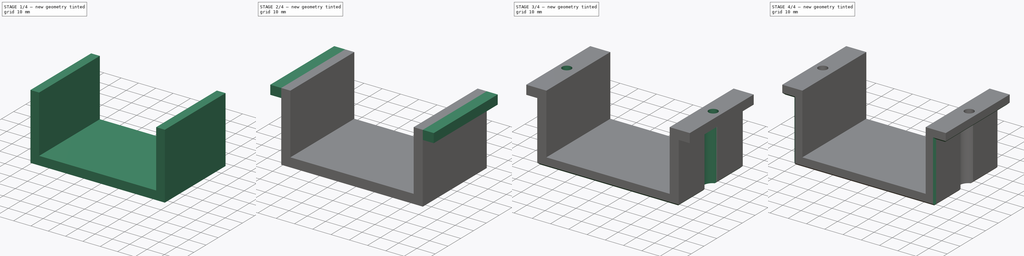
[diagram: build sequence overview — one tinted view per stage of 4, left to right]
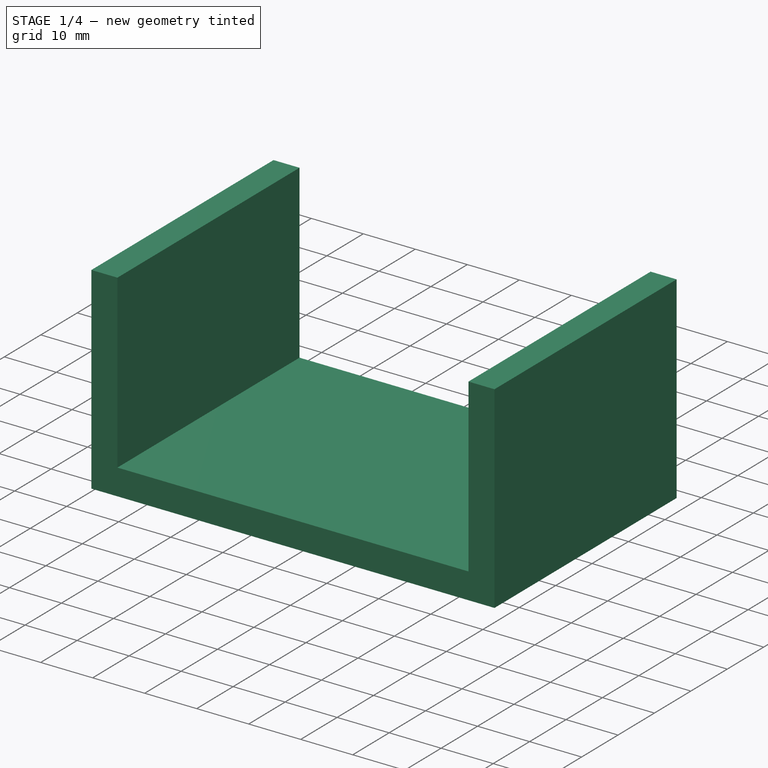
[diagram: stage 1 of 4 — iso view after this stage's code; geometry added in this stage tinted green]
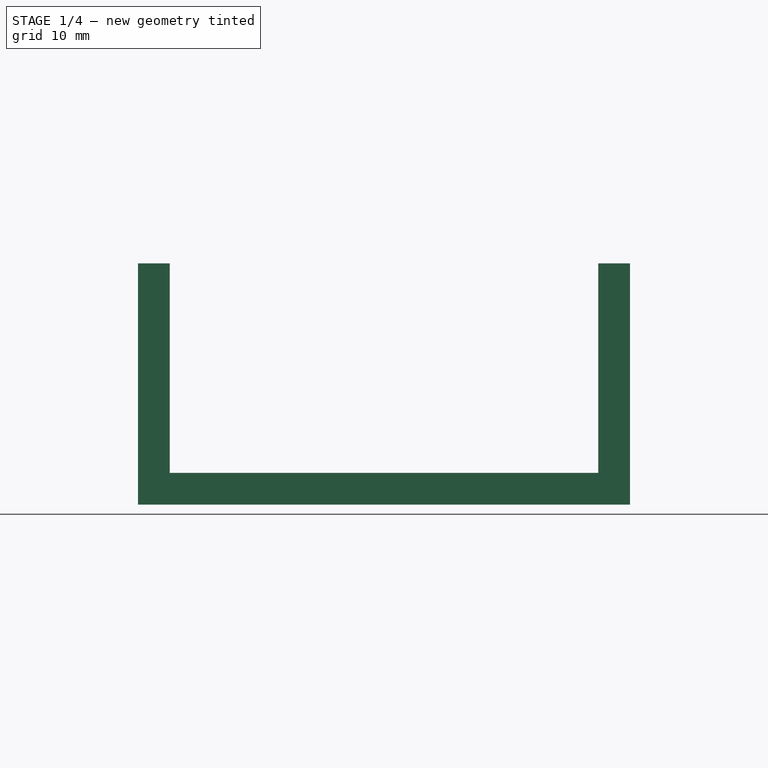
[diagram: stage 1 of 4 — front view after this stage's code; geometry added in this stage tinted green]
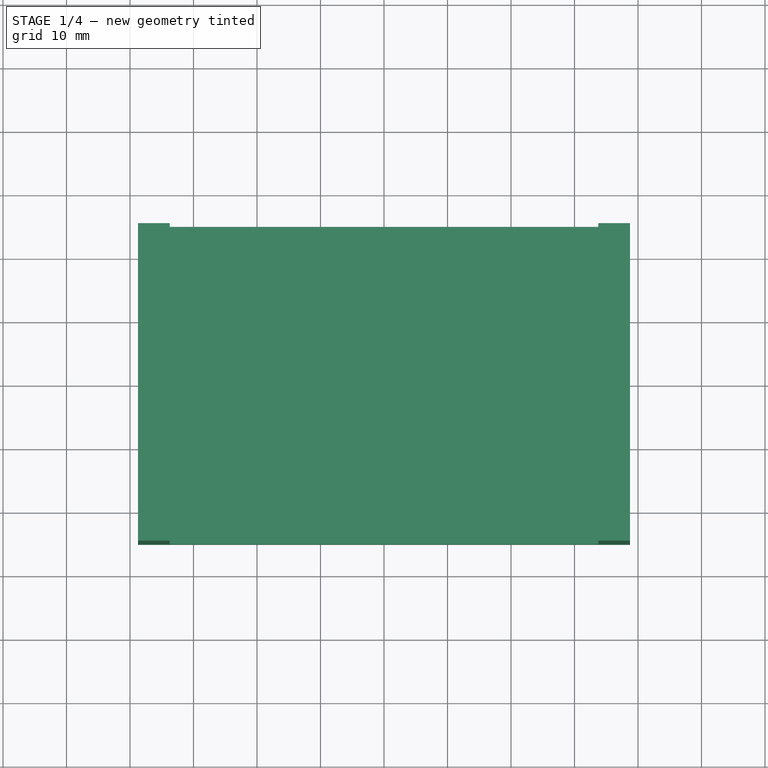
[diagram: stage 1 of 4 — top view after this stage's code; geometry added in this stage tinted green]
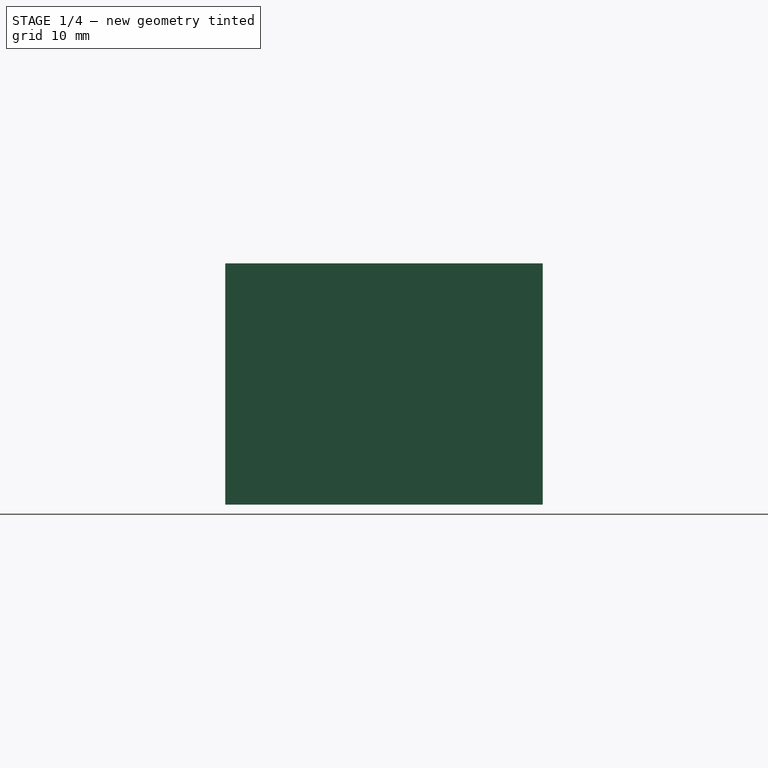
[diagram: stage 1 of 4 — right view after this stage's code; geometry added in this stage tinted green]
FCSTD DOCUMENT  (FreeCAD 0.19R23463 (Git))
Label: power-block-clamp
License: All rights reserved
LicenseURL: http://en.wikipedia.org/wiki/All_rights_reserved
objects: Sketcher::SketchObject×6, PartDesign::Pad×4, PartDesign::Chamfer×3, PartDesign::Pocket×2, PartDesign::Body×1
note: 25 computed .brp shape members not serialized (recipe doc carries the construction recipe); baked Part::Feature solids carry a one-line shape summary decoded from their .brp

FEATURE [Sketcher::SketchObject] Sketch
  MapMode = 5
  Support = -> [XY_Plane]
  sketch-geometry (4):
    g0: LineSegment StartX=-38.75 StartY=25 StartZ=0 EndX=38.75 EndY=25 EndZ=0
    g1: LineSegment StartX=38.75 StartY=25 StartZ=0 EndX=38.75 EndY=-25 EndZ=0
    g2: LineSegment StartX=38.75 StartY=-25 StartZ=0 EndX=-38.75 EndY=-25 EndZ=0
    g3: LineSegment StartX=-38.75 StartY=-25 StartZ=0 EndX=-38.75 EndY=25 EndZ=0
  constraints (11):
    c: Coincident(g0,g1)
    c: Coincident(g1,g2)
    c: Coincident(g2,g3)
    c: Coincident(g3,g0)
    c: Horizontal(g0)
    c: Horizontal(g2)
    c: Vertical(g1)
    c: Vertical(g3)
    c: Symmetric(g0,g1,g-1)
    c: DistanceY(g3,g3) = 50
    c: DistanceX(g0,g0) = 77.5
FEATURE [PartDesign::Pad] Pad
  Direction = (1,1,1)
  Length = 5
  Length2 = 100
  Profile = -> Sketch
  Type = 0
FEATURE [Sketcher::SketchObject] Sketch001
  ExternalGeometry = -> [Pad]
  MapMode = 5
  Placement = pos=(0,0,5) rot=(0,0,1;0rad)
  Support = -> [Pad]
  sketch-geometry (8):
    g0: LineSegment StartX=-38.75 StartY=25 StartZ=0 EndX=-33.75 EndY=25 EndZ=0
    g1: LineSegment StartX=-33.75 StartY=25 StartZ=0 EndX=-33.75 EndY=-25 EndZ=0
    g2: LineSegment StartX=-33.75 StartY=-25 StartZ=0 EndX=-38.75 EndY=-25 EndZ=0
    g3: LineSegment StartX=-38.75 StartY=-25 StartZ=0 EndX=-38.75 EndY=25 EndZ=0
    g4: LineSegment StartX=38.75 StartY=25 StartZ=0 EndX=33.75 EndY=25 EndZ=0
    g5: LineSegment StartX=33.75 StartY=25 StartZ=0 EndX=33.75 EndY=-25 EndZ=0
    g6: LineSegment StartX=33.75 StartY=-25 StartZ=0 EndX=38.75 EndY=-25 EndZ=0
    g7: LineSegment StartX=38.75 StartY=-25 StartZ=0 EndX=38.75 EndY=25 EndZ=0
  constraints (22):
    c: Coincident(g0,g1)
    c: Coincident(g1,g2)
    c: Coincident(g2,g3)
    c: Coincident(g3,g0)
    c: Horizontal(g0)
    c: Horizontal(g2)
    c: Vertical(g1)
    c: Vertical(g3)
    c: Coincident(g0,g-4)
    c: PointOnObject(g1,g-5)
    c: DistanceX(g2,g2) = 5
    c: Coincident(g4,g5)
    c: Coincident(g5,g6)
    c: Coincident(g6,g7)
    c: Coincident(g7,g4)
    c: Horizontal(g4)
    c: Horizontal(g6)
    c: Vertical(g5)
    c: Vertical(g7)
    c: Coincident(g4,g-6)
    c: PointOnObject(g5,g-5)
    c: Equal(g6,g2)
FEATURE [PartDesign::Pad] Pad001
  BaseFeature = -> Pad
  Direction = (1,1,1)
  Length = 33
  Length2 = 100
  Profile = -> Sketch001
  Type = 0
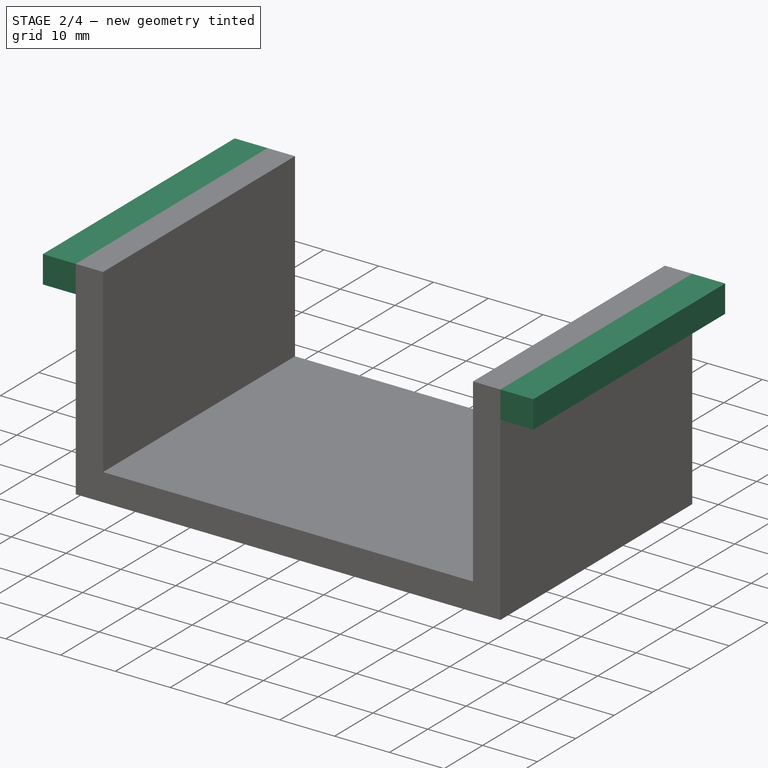
[diagram: stage 2 of 4 — iso view after this stage's code; geometry added in this stage tinted green]
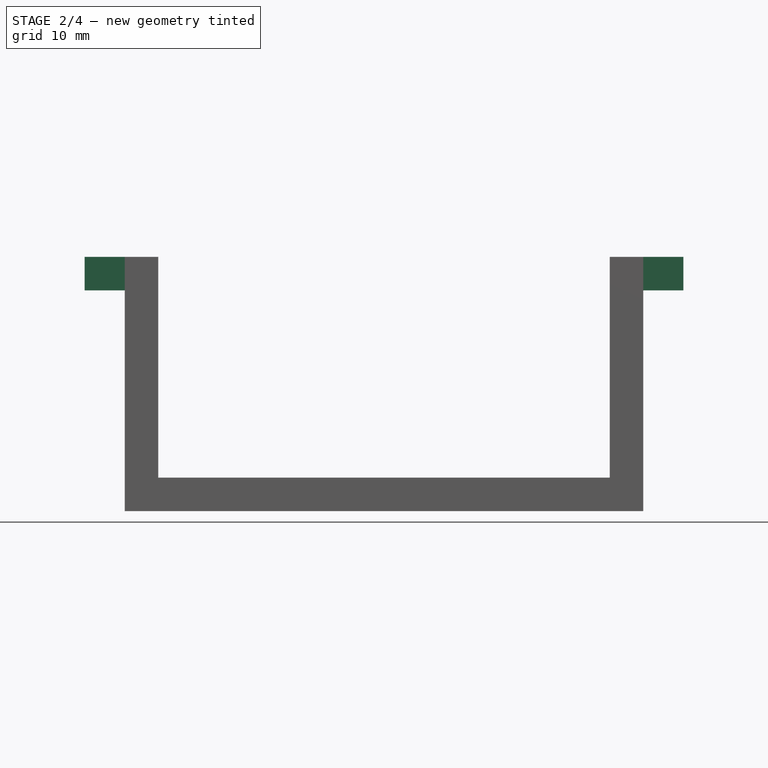
[diagram: stage 2 of 4 — front view after this stage's code; geometry added in this stage tinted green]
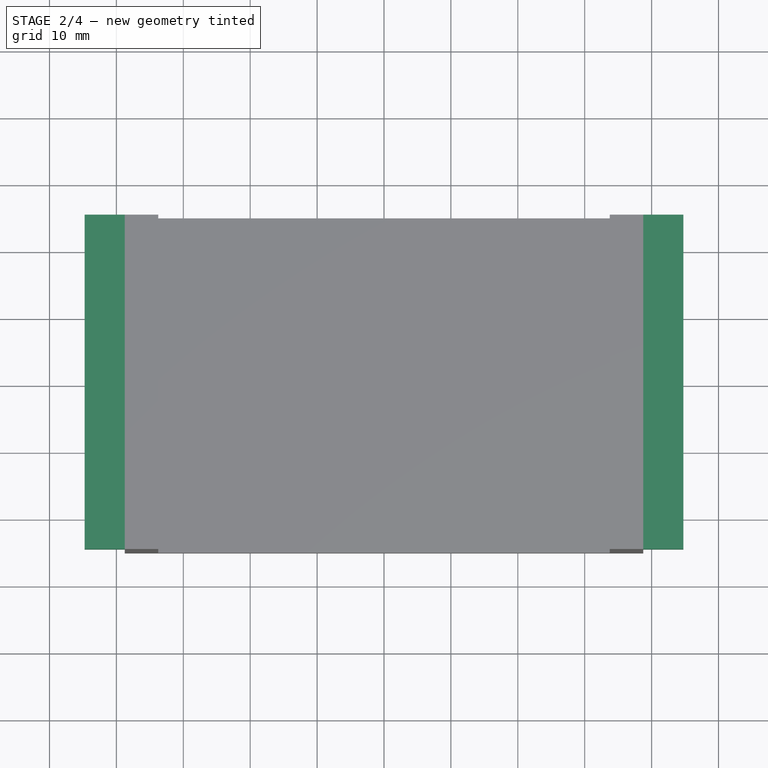
[diagram: stage 2 of 4 — top view after this stage's code; geometry added in this stage tinted green]
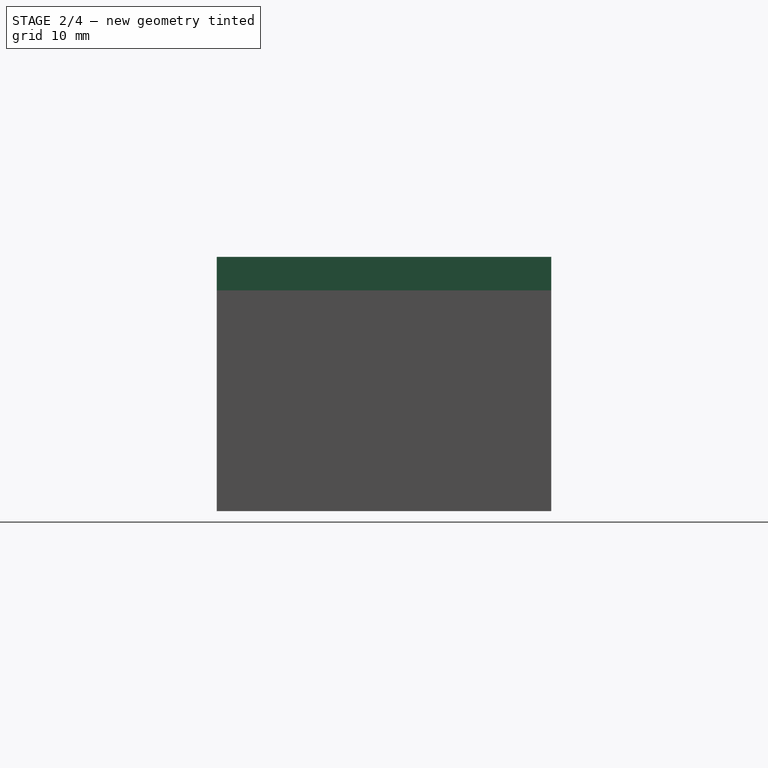
[diagram: stage 2 of 4 — right view after this stage's code; geometry added in this stage tinted green]
FEATURE [Sketcher::SketchObject] Sketch002
  ExternalGeometry = -> [Pad001]
  MapMode = 5
  Placement = pos=(38.75,0,0) rot=(0.57735,0.57735,0.57735;2.0944rad)
  Support = -> [Pad001]
  sketch-geometry (4):
    g0: LineSegment StartX=-25 StartY=38 StartZ=0 EndX=25 EndY=38 EndZ=0
    g1: LineSegment StartX=25 StartY=38 StartZ=0 EndX=25 EndY=33 EndZ=0
    g2: LineSegment StartX=25 StartY=33 StartZ=0 EndX=-25 EndY=33 EndZ=0
    g3: LineSegment StartX=-25 StartY=33 StartZ=0 EndX=-25 EndY=38 EndZ=0
  constraints (11):
    c: Coincident(g0,g1)
    c: Coincident(g1,g2)
    c: Coincident(g2,g3)
    c: Coincident(g3,g0)
    c: Horizontal(g0)
    c: Horizontal(g2)
    c: Vertical(g1)
    c: Vertical(g3)
    c: Coincident(g0,g-4)
    c: PointOnObject(g1,g-5)
    c: DistanceY(g3,g3) = 5
FEATURE [PartDesign::Pad] Pad002
  BaseFeature = -> Pad001
  Direction = (1,1,1)
  Length = 6
  Length2 = 100
  Profile = -> Sketch002
  Type = 0
FEATURE [Sketcher::SketchObject] Sketch003
  ExternalGeometry = -> [Pad002]
  MapMode = 5
  Placement = pos=(-38.75,0,0) rot=(0.57735,-0.57735,-0.57735;2.0944rad)
  Support = -> [Pad002]
  sketch-geometry (4):
    g0: LineSegment StartX=-25 StartY=38 StartZ=0 EndX=25 EndY=38 EndZ=0
    g1: LineSegment StartX=25 StartY=38 StartZ=0 EndX=25 EndY=33 EndZ=0
    g2: LineSegment StartX=25 StartY=33 StartZ=0 EndX=-25 EndY=33 EndZ=0
    g3: LineSegment StartX=-25 StartY=33 StartZ=0 EndX=-25 EndY=38 EndZ=0
  constraints (11):
    c: Coincident(g0,g1)
    c: Coincident(g1,g2)
    c: Coincident(g2,g3)
    c: Coincident(g3,g0)
    c: Horizontal(g0)
    c: Horizontal(g2)
    c: Vertical(g1)
    c: Vertical(g3)
    c: Coincident(g0,g-5)
    c: PointOnObject(g1,g-4)
    c: DistanceY(g1,g1) = 5
FEATURE [PartDesign::Pad] Pad003
  BaseFeature = -> Pad002
  Direction = (1,1,1)
  Length = 6
  Length2 = 100
  Profile = -> Sketch003
  Type = 0
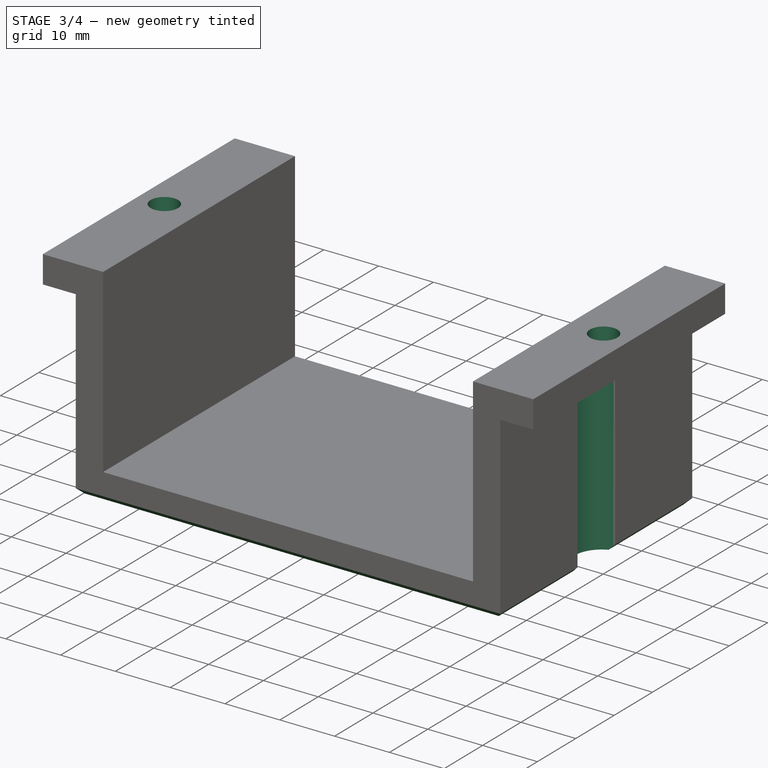
[diagram: stage 3 of 4 — iso view after this stage's code; geometry added in this stage tinted green]
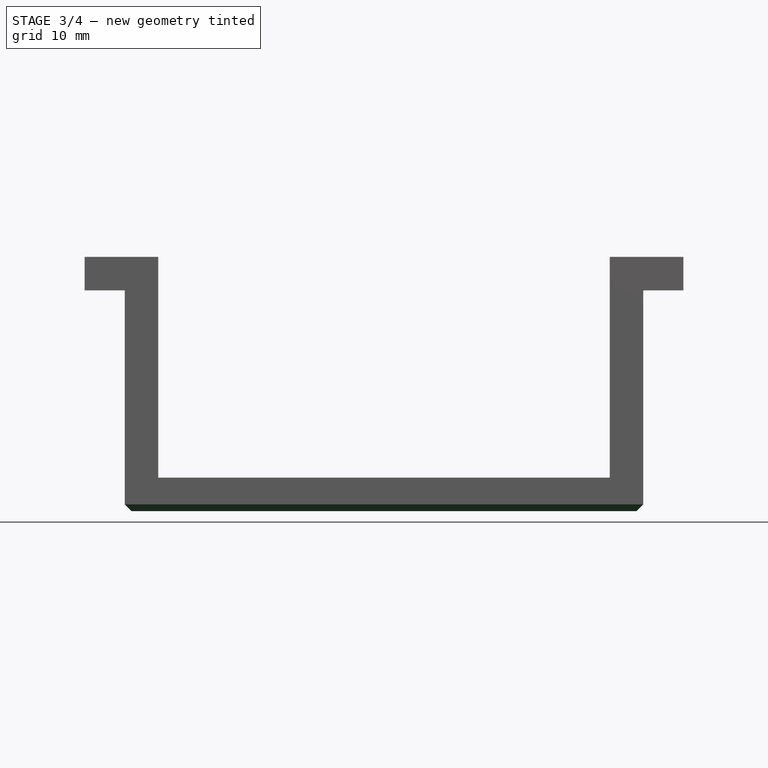
[diagram: stage 3 of 4 — front view after this stage's code; geometry added in this stage tinted green]
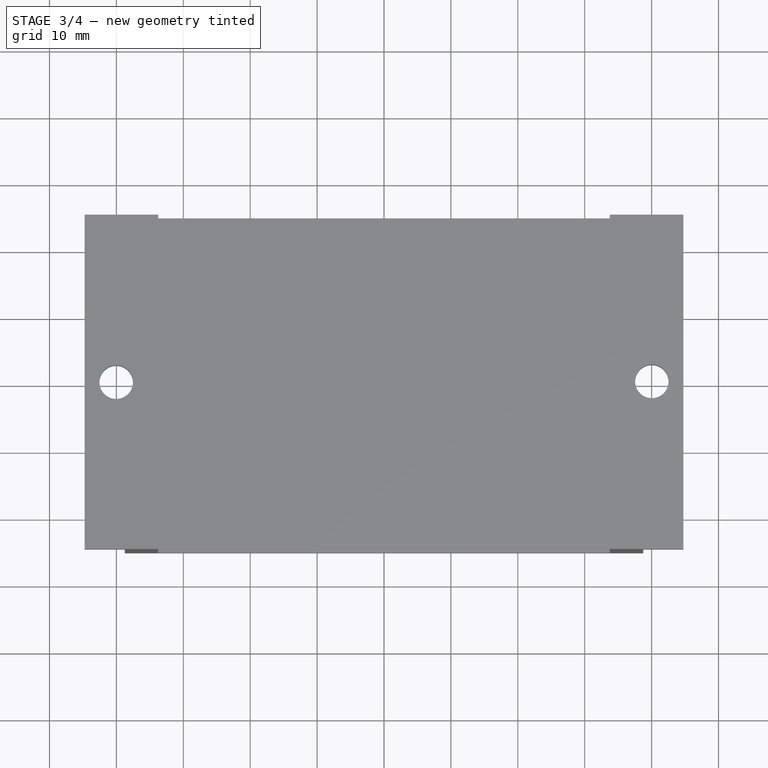
[diagram: stage 3 of 4 — top view after this stage's code; geometry added in this stage tinted green]
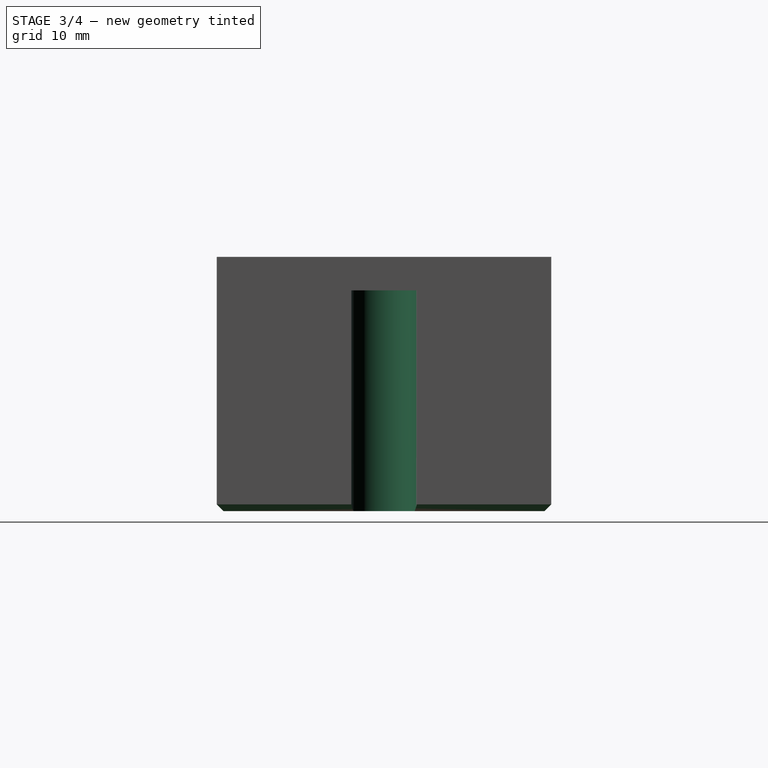
[diagram: stage 3 of 4 — right view after this stage's code; geometry added in this stage tinted green]
FEATURE [Sketcher::SketchObject] Sketch004
  ExternalGeometry = -> [Pad003]
  MapMode = 5
  Placement = pos=(0,0,33) rot=(1,0,0;3.14159rad)
  Support = -> [Pad003]
  sketch-geometry (6):
    g0: LineSegment StartX=-44.75 StartY=0 StartZ=0 EndX=-38.8007 EndY=0 EndZ=0
    g1: LineSegment StartX=38.729 StartY=0 StartZ=0 EndX=44.75 EndY=0 EndZ=0
    g2: Circle CenterX=40.0361 CenterY=-0.0590486 CenterZ=0 NormalX=0 NormalY=0 NormalZ=1 AngleXU=0 Radius=2.5
    g3: Circle CenterX=-40.0361 CenterY=0.0590486 CenterZ=0 NormalX=0 NormalY=0 NormalZ=1 AngleXU=0 Radius=2.5
    g4: LineSegment StartX=-35.3221 StartY=25 StartZ=0 EndX=-35.3221 EndY=-24.8819 EndZ=0
    g5: LineSegment StartX=35.3221 StartY=24.8819 StartZ=0 EndX=34.75 EndY=-25 EndZ=0
  constraints (13):
    c: PointOnObject(g0,g-6)
    c: PointOnObject(g0,g-1)
    c: Horizontal(g0)
    c: PointOnObject(g1,g-1)
    c: PointOnObject(g1,g-3)
    c: Horizontal(g1)
    c: Radius(g2) = 2.5
    c: Radius(g3) = 2.5
    c: PointOnObject(g4,g-10)
    c: Vertical(g4)
    c: Symmetric(g-8,g4,g3)
    c: PointOnObject(g5,g-9)
    c: Symmetric(g5,g-5,g2)
FEATURE [PartDesign::Pocket] Pocket
  BaseFeature = -> Pad003
  Length = 5
  Length2 = 100
  Profile = -> Sketch004
  Type = 1
FEATURE [Sketcher::SketchObject] Sketch005
  ExternalGeometry = -> [Pocket]
  MapMode = 5
  Placement = pos=(0,0,0) rot=(1,0,0;3.14159rad)
  Support = -> [Pocket]
  sketch-geometry (4):
    g0: LineSegment StartX=34.75 StartY=25 StartZ=0 EndX=34.75 EndY=-25 EndZ=0
    g1: Circle CenterX=39.75 CenterY=2.5e-15 CenterZ=0 NormalX=0 NormalY=0 NormalZ=1 AngleXU=0 Radius=5
    g2: Circle CenterX=-39.75 CenterY=-6e-16 CenterZ=0 NormalX=0 NormalY=0 NormalZ=1 AngleXU=0 Radius=5
    g3: LineSegment StartX=-34.75 StartY=25 StartZ=0 EndX=-34.75 EndY=-25 EndZ=0
  constraints (12):
    c: PointOnObject(g0,g-3)
    c: PointOnObject(g0,g-6)
    c: Vertical(g0)
    c: Radius(g1) = 5
    c: Radius(g2) = 5
    c: PointOnObject(g3,g-3)
    c: PointOnObject(g3,g-6)
    c: Vertical(g3)
    c: DistanceX(g0,g-8) = 10
    c: DistanceX(g-7,g3) = 10
    c: Symmetric(g-7,g3,g2)
    c: Symmetric(g0,g-8,g1)
FEATURE [PartDesign::Pocket] Pocket001
  BaseFeature = -> Pocket
  Length = 33
  Length2 = 100
  Profile = -> Sketch005
  Type = 0
FEATURE [PartDesign::Chamfer] Chamfer
  Angle = 45
  Base = -> Pocket001 [Edge3,Edge16,Edge7,Edge15,Edge17,Edge10]
  BaseFeature = -> Pocket001
  ChamferType = 0
  FlipDirection = false
  Size = 1
  Size2 = 1
  SupportTransform = false
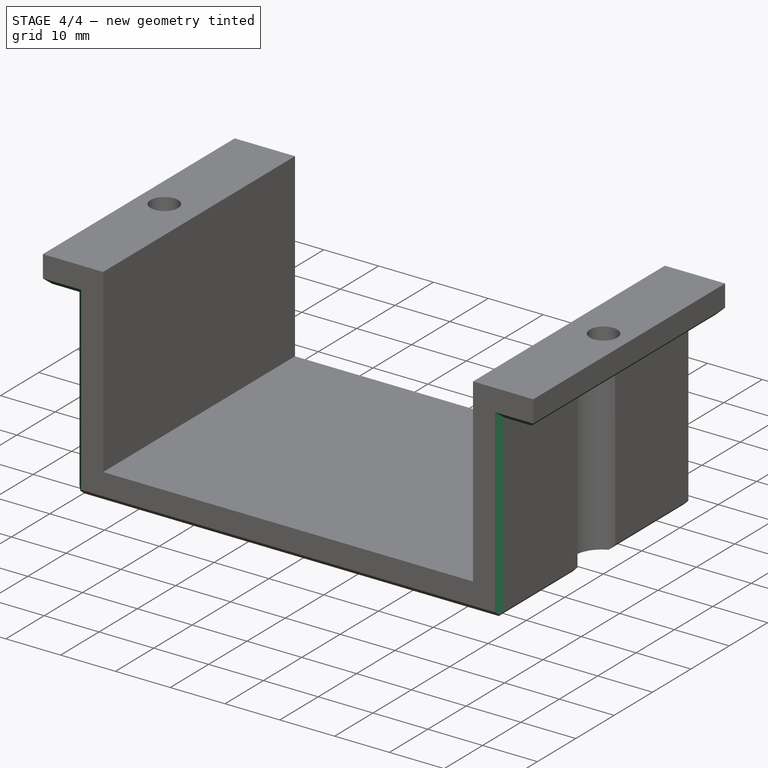
[diagram: stage 4 of 4 — iso view after this stage's code; geometry added in this stage tinted green]
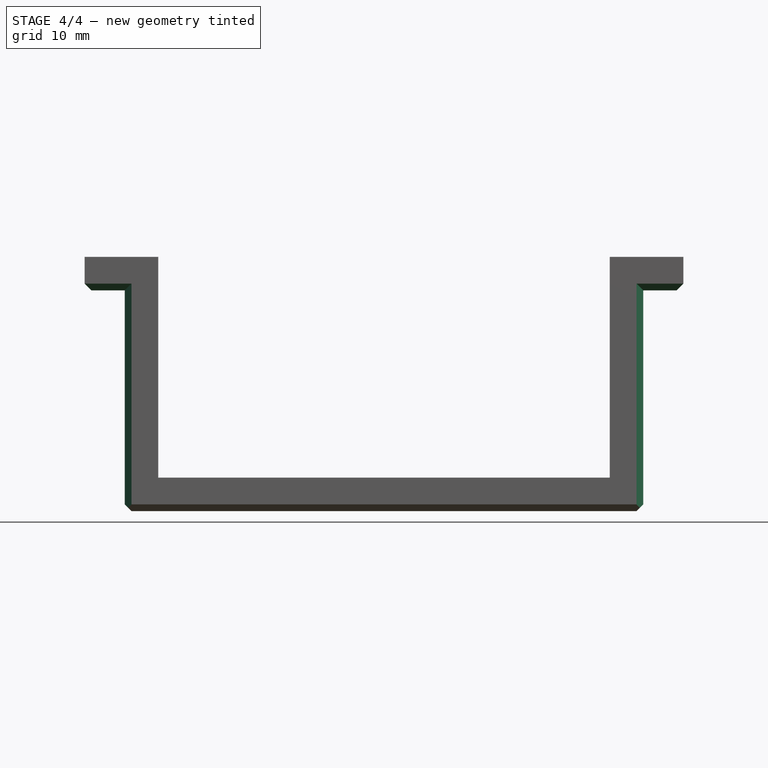
[diagram: stage 4 of 4 — front view after this stage's code; geometry added in this stage tinted green]
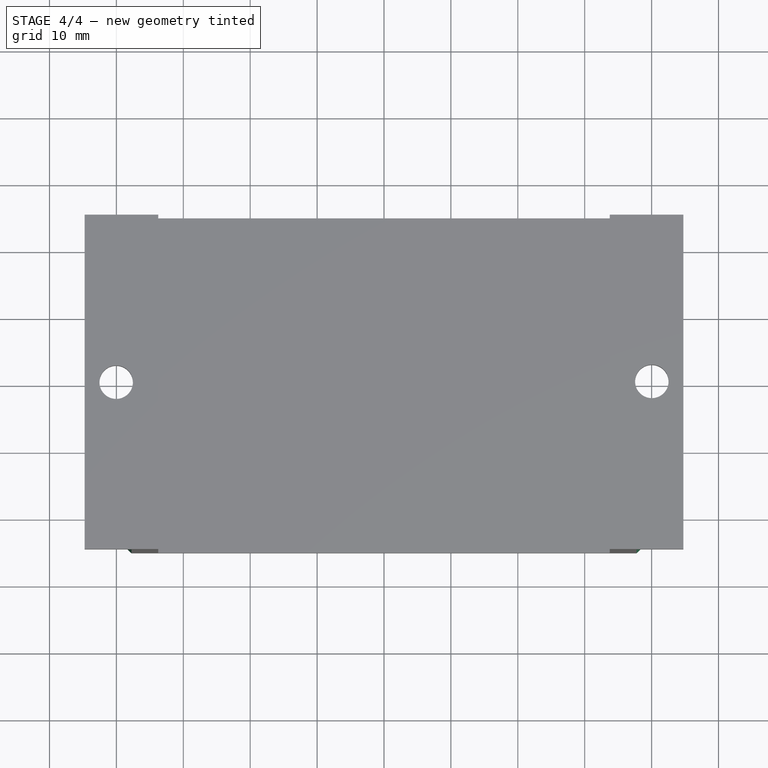
[diagram: stage 4 of 4 — top view after this stage's code; geometry added in this stage tinted green]
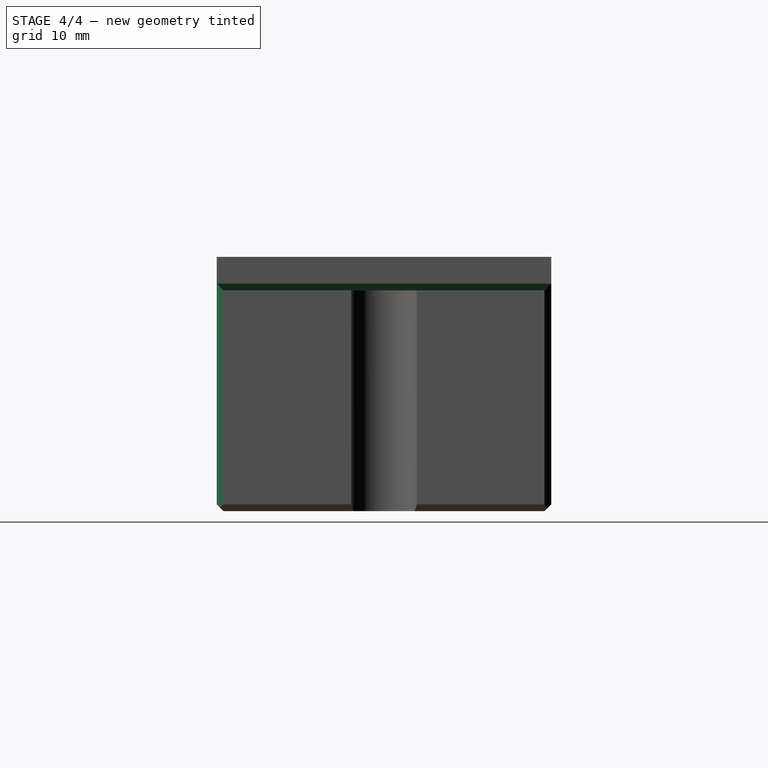
[diagram: stage 4 of 4 — right view after this stage's code; geometry added in this stage tinted green]
FEATURE [PartDesign::Chamfer] Chamfer001
  Angle = 45
  Base = -> Chamfer [Edge72,Edge89,Edge108,Edge101,Edge115,Edge41,Edge65,Edge117]
  BaseFeature = -> Chamfer
  ChamferType = 0
  FlipDirection = false
  Size = 1
  Size2 = 1
  SupportTransform = false
FEATURE [PartDesign::Chamfer] Chamfer002
  Angle = 45
  Base = -> Chamfer001 [Edge4,Edge86,Edge95,Edge105]
  BaseFeature = -> Chamfer001
  ChamferType = 0
  FlipDirection = false
  Size = 1
  Size2 = 1
  SupportTransform = false
FEATURE [PartDesign::Body] Body
  Group = -> [Sketch,Pad,Sketch001,Pad001,Sketch002,Pad002,Sketch003,Pad003,Sketch004,Pocket,Sketch005,Pocket001,Chamfer,Chamfer001,Chamfer002]
  Origin = -> Origin
  Tip = -> Chamfer002
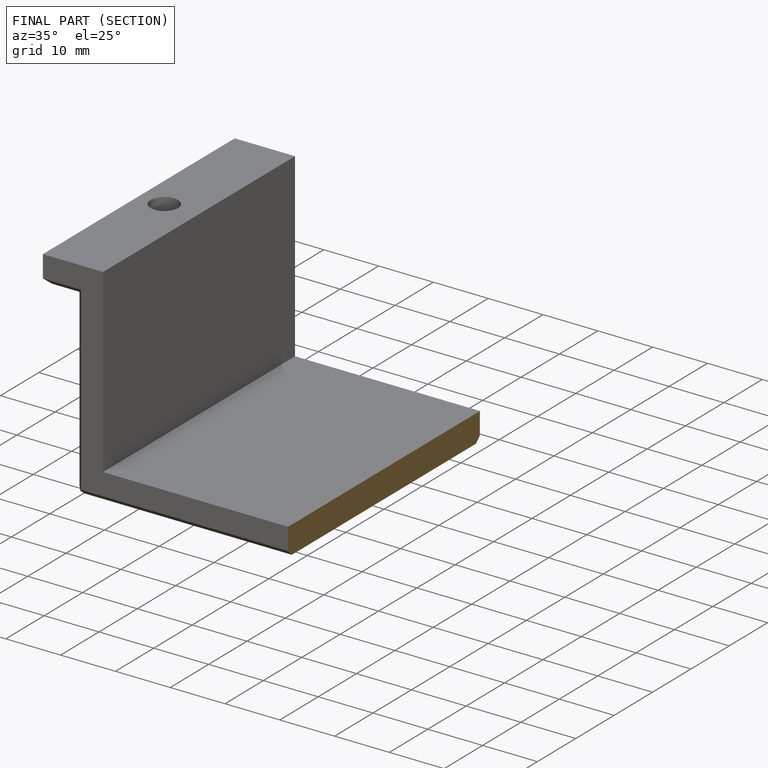
[diagram: finished part — half-section view (interior)]
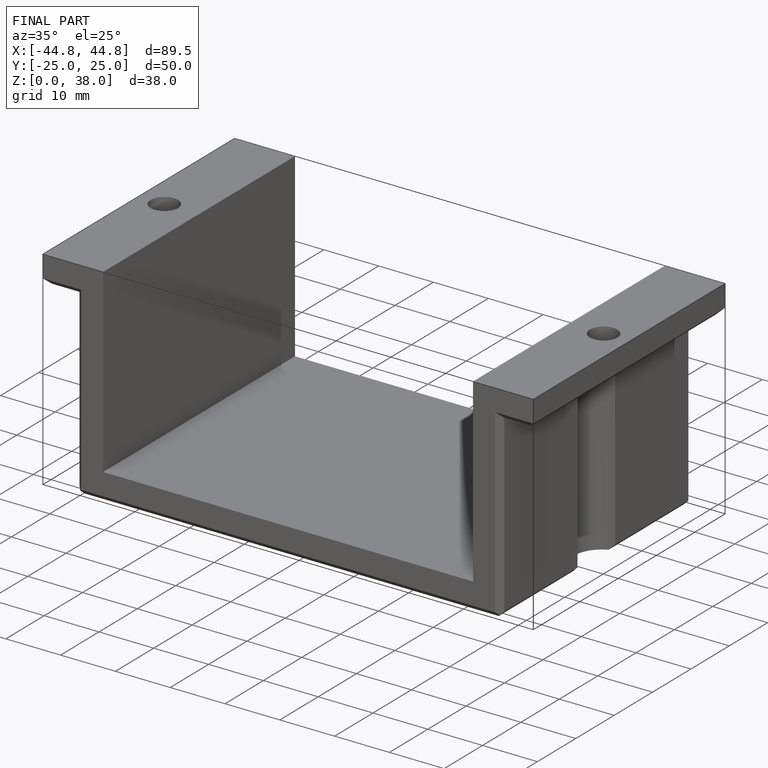
[diagram: finished part — iso view with bounding-box wireframe]
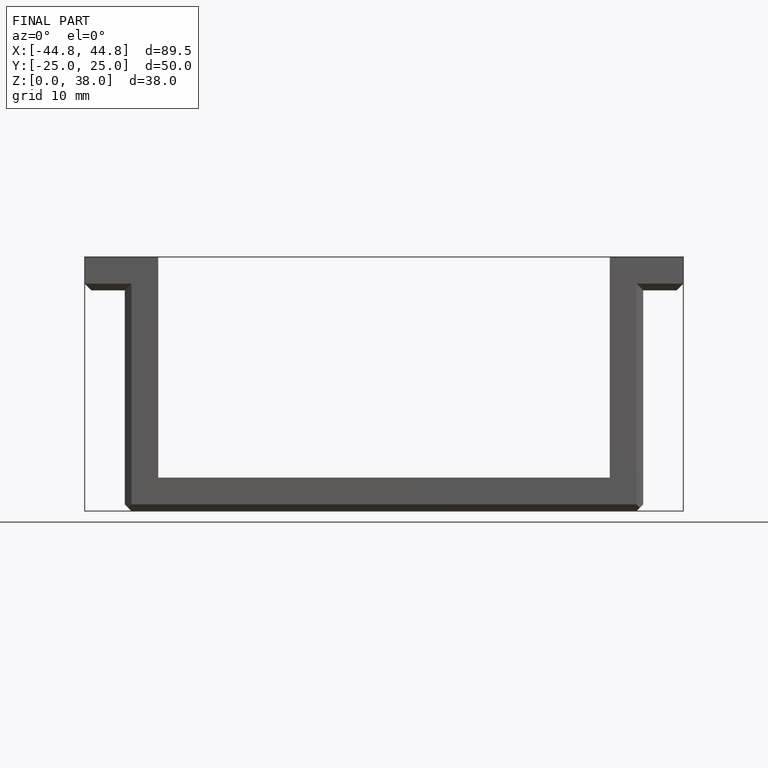
[diagram: finished part — front view with bounding-box wireframe]
